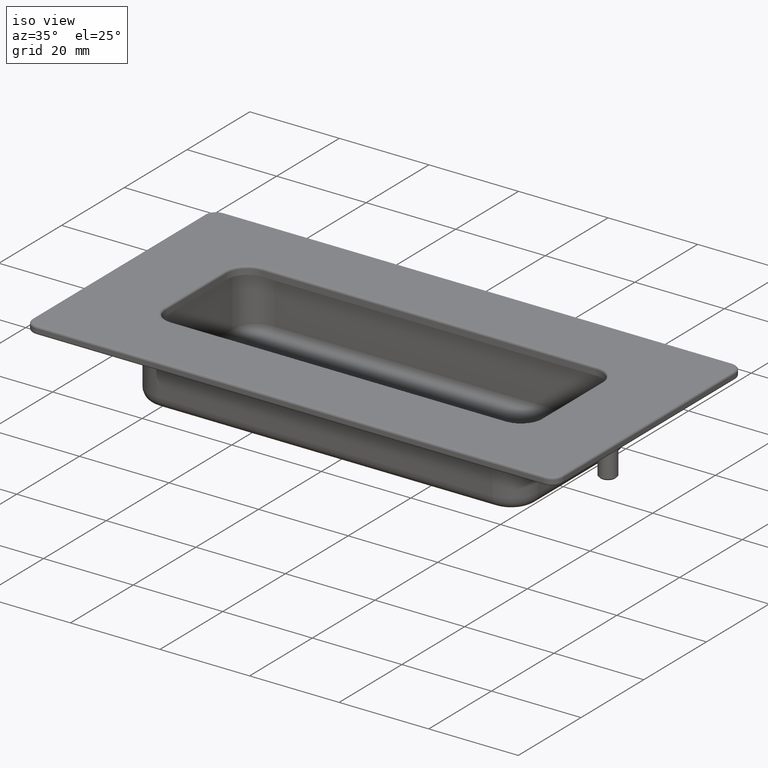
[diagram: clean part render]
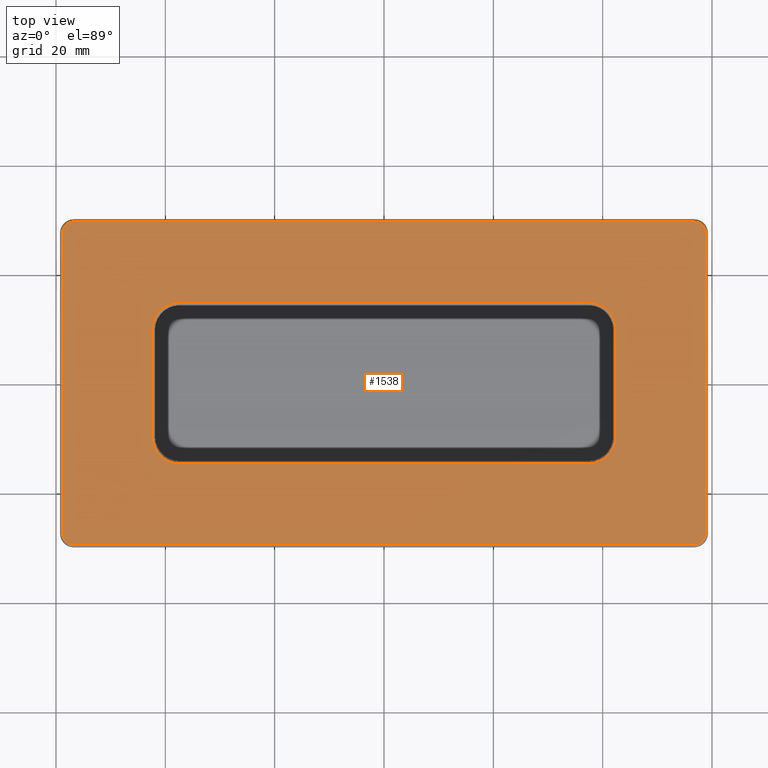
[diagram: tour spotlight — one face highlighted and labeled with its STEP entity id]
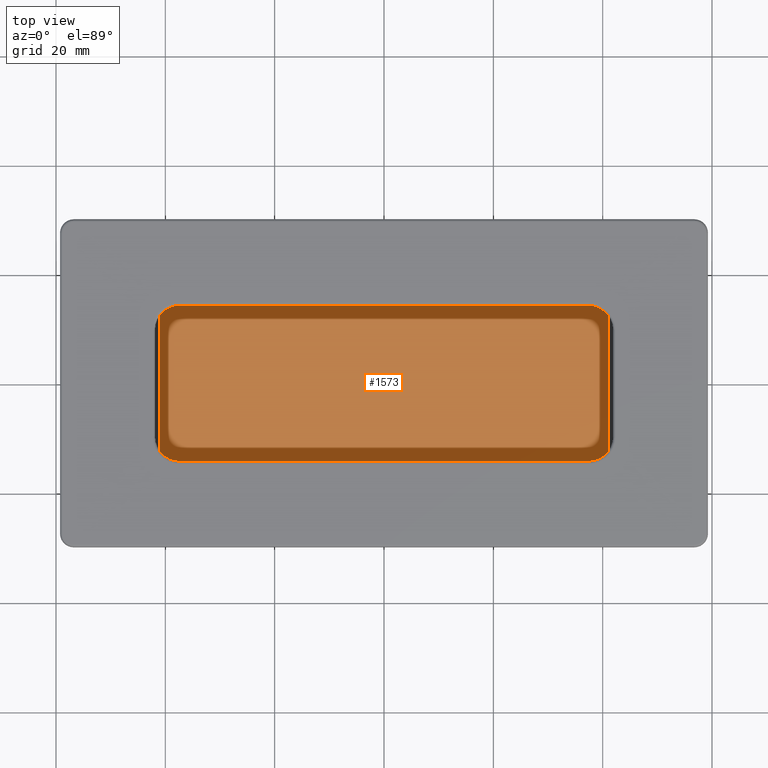
[diagram: tour spotlight — one face highlighted and labeled with its STEP entity id]
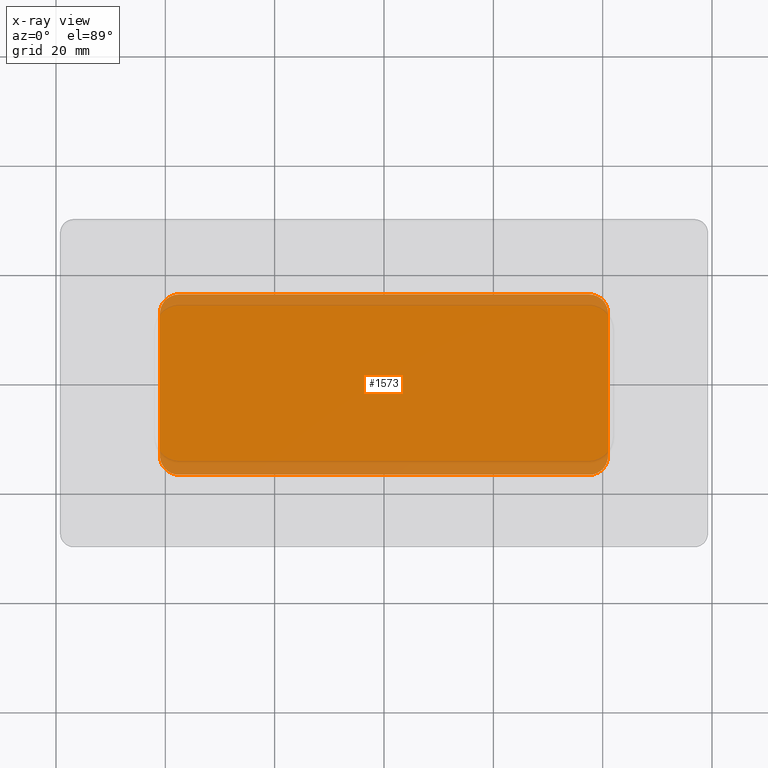
[diagram: x-ray of the same camera — body ghosted, this tour face saturated]
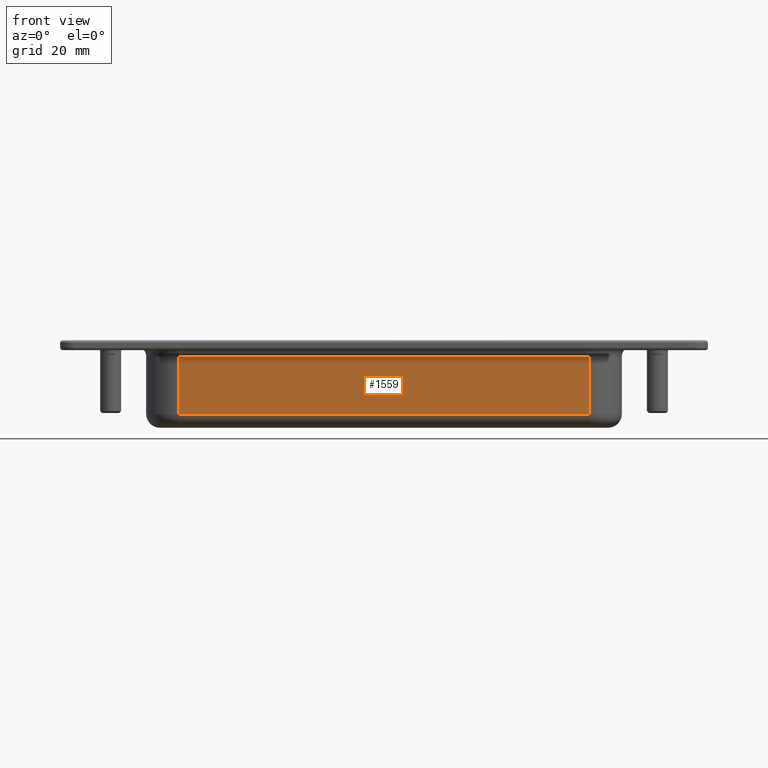
[diagram: tour spotlight — one face highlighted and labeled with its STEP entity id]
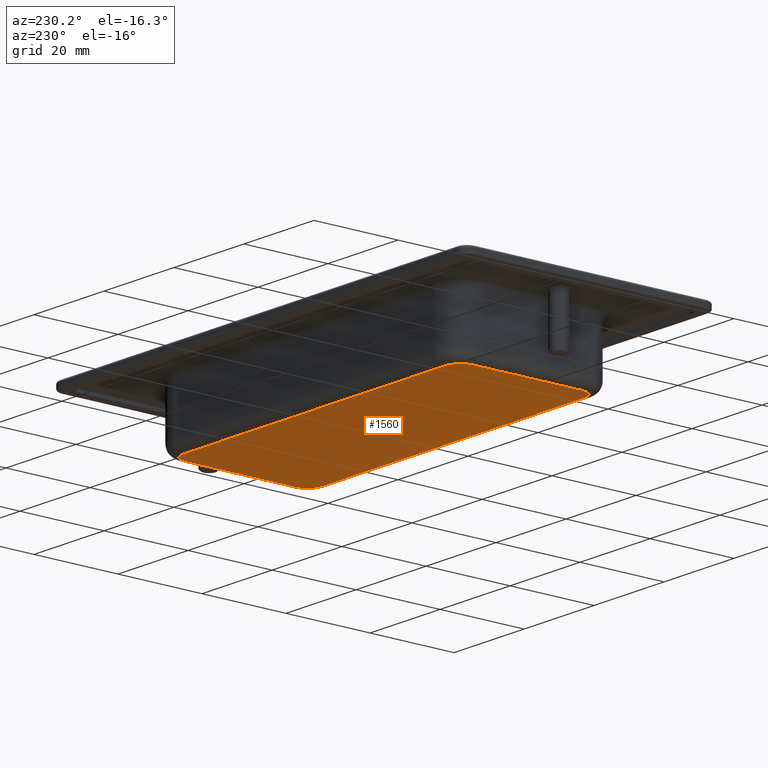
[diagram: tour spotlight — one face highlighted and labeled with its STEP entity id]
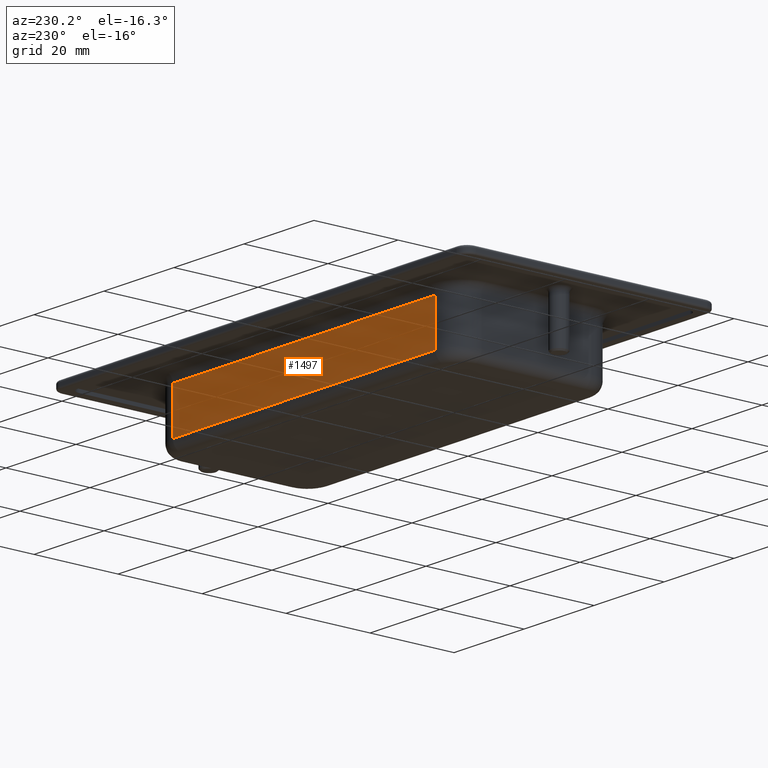
[diagram: tour spotlight — one face highlighted and labeled with its STEP entity id]
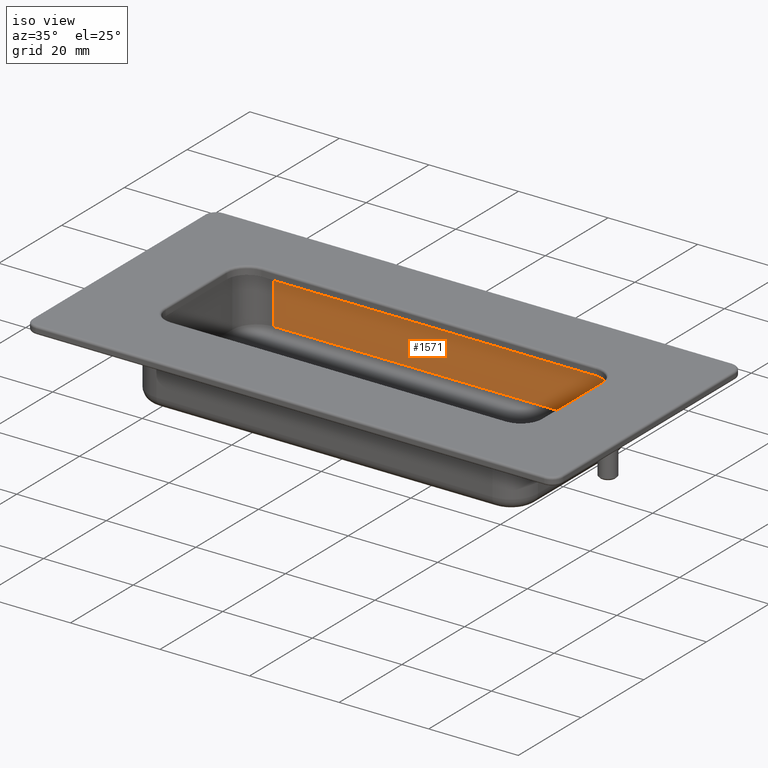
[diagram: tour spotlight — one face highlighted and labeled with its STEP entity id]
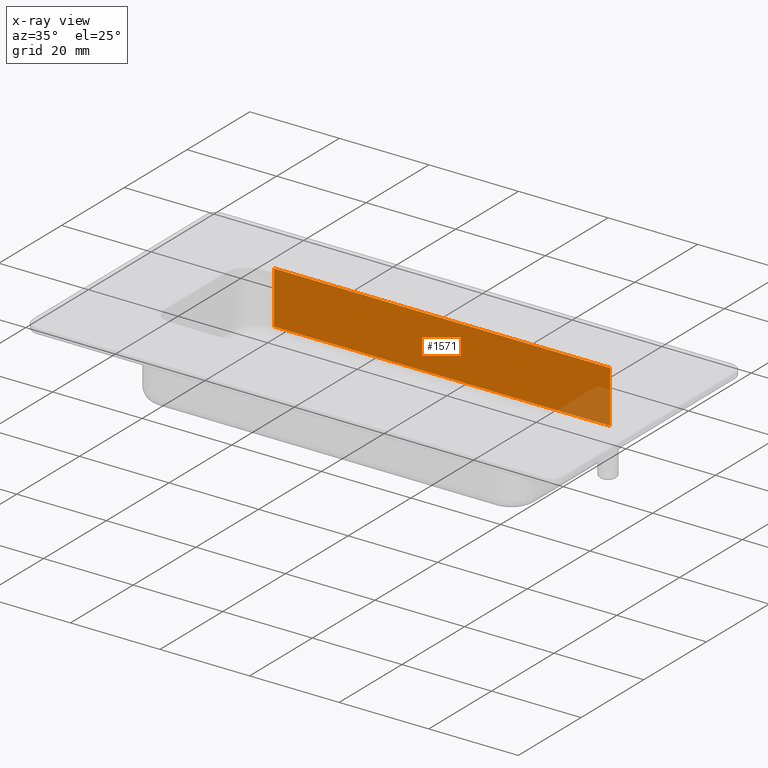
[diagram: x-ray of the same camera — body ghosted, this tour face saturated]
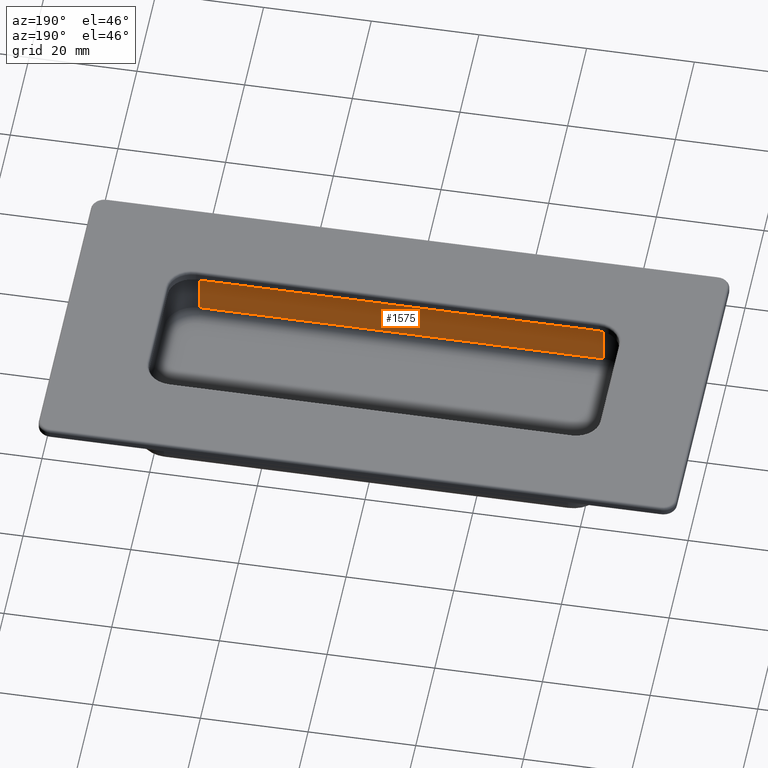
[diagram: tour spotlight — one face highlighted and labeled with its STEP entity id]
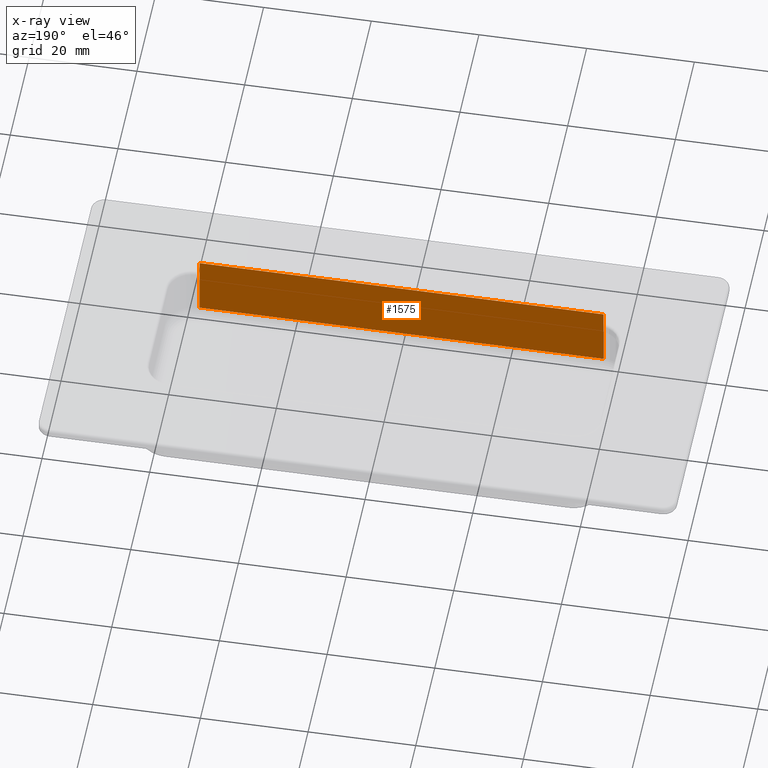
[diagram: x-ray of the same camera — body ghosted, this tour face saturated]
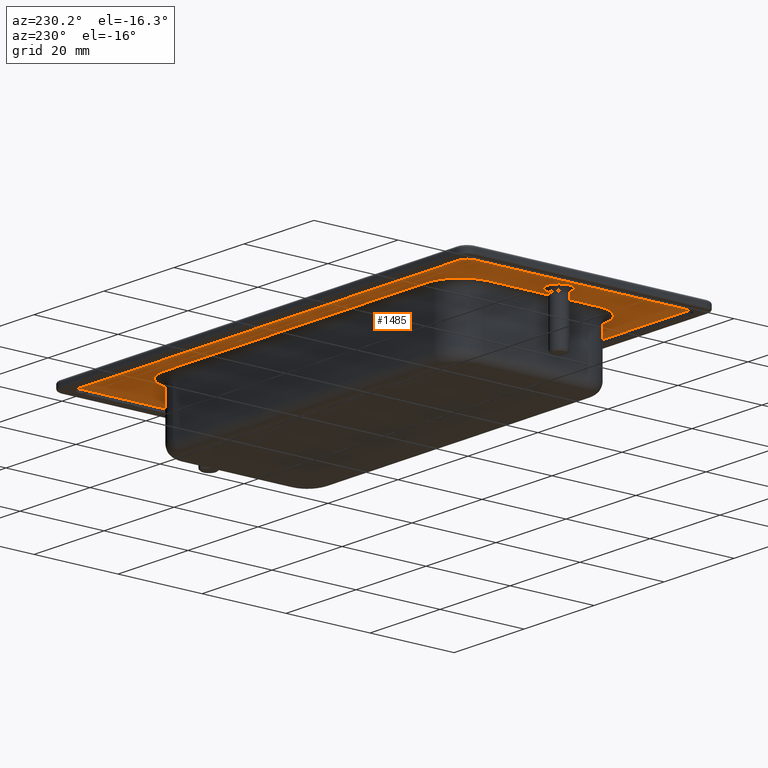
[diagram: tour spotlight — one face highlighted and labeled with its STEP entity id]
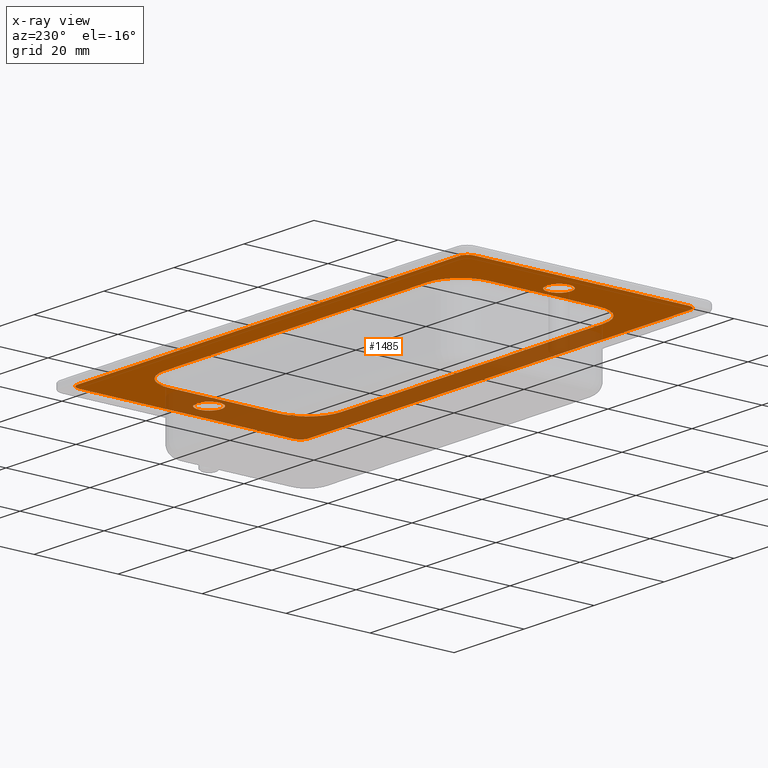
[diagram: x-ray of the same camera — body ghosted, this tour face saturated]
A machine part: a face-by-face anatomy tour. The part has 102 B-rep faces; the first image is the clean iso view, then the 8 largest visible faces are spotlighted one at a time (largest first), each with its STEP entity span.

Face 1 — top view, entity #1538. In plain terms, the highlighted planar face has unit normal (0, 0, 1).
Definition (entity closure, byte-faithful):
#112=LINE('',#2580,#216);
#114=LINE('',#2592,#218);
#116=LINE('',#2604,#220);
#118=LINE('',#2613,#222);
#127=LINE('',#2636,#231);
#128=LINE('',#2640,#232);
#129=LINE('',#2644,#233);
#130=LINE('',#2648,#234);
#216=VECTOR('',#2060,19.5);
#218=VECTOR('',#2074,74.8);
#220=VECTOR('',#2088,19.5);
#222=VECTOR('',#2100,74.8);
#231=VECTOR('',#2123,113.5);
#232=VECTOR('',#2126,55.);
#233=VECTOR('',#2129,113.5);
#234=VECTOR('',#2132,55.);
#288=PLANE('',#1712);
#312=FACE_BOUND('',#481,.T.);
#368=FACE_OUTER_BOUND('',#480,.T.);
#480=EDGE_LOOP('',(#1234,#1235,#1236,#1237,#1238,#1239,#1240,#1241));
#481=EDGE_LOOP('',(#1242,#1243,#1244,#1245,#1246,#1247,#1248,#1249));
#585=CIRCLE('',#1686,5.00000000000002);
#588=CIRCLE('',#1691,5.);
#592=CIRCLE('',#1697,4.99999999999999);
#596=CIRCLE('',#1703,5.);
#600=CIRCLE('',#1713,2.);
#601=CIRCLE('',#1714,2.);
#602=CIRCLE('',#1715,2.);
#603=CIRCLE('',#1716,2.);
#716=VERTEX_POINT('',#2568);
#719=VERTEX_POINT('',#2573);
#721=VERTEX_POINT('',#2578);
#723=VERTEX_POINT('',#2584);
#725=VERTEX_POINT('',#2590);
#727=VERTEX_POINT('',#2596);
#729=VERTEX_POINT('',#2602);
#731=VERTEX_POINT('',#2608);
#737=VERTEX_POINT('',#2634);
#738=VERTEX_POINT('',#2635);
#739=VERTEX_POINT('',#2637);
#740=VERTEX_POINT('',#2639);
#741=VERTEX_POINT('',#2641);
#742=VERTEX_POINT('',#2643);
#743=VERTEX_POINT('',#2645);
#744=VERTEX_POINT('',#2647);
#887=EDGE_CURVE('',#719,#716,#585,.T.);
#889=EDGE_CURVE('',#721,#719,#112,.T.);
#892=EDGE_CURVE('',#723,#721,#588,.T.);
#895=EDGE_CURVE('',#725,#723,#114,.T.);
#898=EDGE_CURVE('',#727,#725,#592,.T.);
#901=EDGE_CURVE('',#729,#727,#116,.T.);
#904=EDGE_CURVE('',#731,#729,#596,.T.);
#906=EDGE_CURVE('',#716,#731,#118,.T.);
#917=EDGE_CURVE('',#737,#738,#127,.T.);
#918=EDGE_CURVE('',#739,#737,#600,.T.);
#919=EDGE_CURVE('',#740,#739,#128,.T.);
#920=EDGE_CURVE('',#741,#740,#601,.T.);
#921=EDGE_CURVE('',#742,#741,#129,.T.);
#922=EDGE_CURVE('',#743,#742,#602,.T.);
#923=EDGE_CURVE('',#744,#743,#130,.T.);
#924=EDGE_CURVE('',#738,#744,#603,.T.);
#1234=ORIENTED_EDGE('',*,*,#917,.F.);
#1235=ORIENTED_EDGE('',*,*,#918,.F.);
#1236=ORIENTED_EDGE('',*,*,#919,.F.);
#1237=ORIENTED_EDGE('',*,*,#920,.F.);
#1238=ORIENTED_EDGE('',*,*,#921,.F.);
#1239=ORIENTED_EDGE('',*,*,#922,.F.);
#1240=ORIENTED_EDGE('',*,*,#923,.F.);
#1241=ORIENTED_EDGE('',*,*,#924,.F.);
#1242=ORIENTED_EDGE('',*,*,#887,.F.);
#1243=ORIENTED_EDGE('',*,*,#889,.F.);
#1244=ORIENTED_EDGE('',*,*,#892,.F.);
#1245=ORIENTED_EDGE('',*,*,#895,.F.);
#1246=ORIENTED_EDGE('',*,*,#898,.F.);
#1247=ORIENTED_EDGE('',*,*,#901,.F.);
#1248=ORIENTED_EDGE('',*,*,#904,.F.);
#1249=ORIENTED_EDGE('',*,*,#906,.F.);
#1538=ADVANCED_FACE('',(#368,#312),#288,.T.);
#1686=AXIS2_PLACEMENT_3D('',#2575,#2054,#2055);
#1691=AXIS2_PLACEMENT_3D('',#2586,#2066,#2067);
#1697=AXIS2_PLACEMENT_3D('',#2598,#2080,#2081);
#1703=AXIS2_PLACEMENT_3D('',#2610,#2094,#2095);
#1712=AXIS2_PLACEMENT_3D('',#2633,#2121,#2122);
#1713=AXIS2_PLACEMENT_3D('',#2638,#2124,#2125);
#1714=AXIS2_PLACEMENT_3D('',#2642,#2127,#2128);
#1715=AXIS2_PLACEMENT_3D('',#2646,#2130,#2131);
#1716=AXIS2_PLACEMENT_3D('',#2649,#2133,#2134);
#2054=DIRECTION('center_axis',(0.,0.,1.));
#2055=DIRECTION('ref_axis',(0.707106781186547,0.707106781186548,0.));
#2060=DIRECTION('',(0.,1.,0.));
#2066=DIRECTION('center_axis',(0.,0.,1.));
#2067=DIRECTION('ref_axis',(0.707106781186547,-0.707106781186548,0.));
#2074=DIRECTION('',(1.,0.,0.));
#2080=DIRECTION('center_axis',(0.,0.,1.));
#2081=DIRECTION('ref_axis',(-0.707106781186547,-0.707106781186548,0.));
#2088=DIRECTION('',(0.,-1.,0.));
#2094=DIRECTION('center_axis',(0.,0.,1.));
#2095=DIRECTION('ref_axis',(-0.707106781186548,0.707106781186547,0.));
#2100=DIRECTION('',(-1.,0.,0.));
#2121=DIRECTION('center_axis',(0.,0.,1.));
#2122=DIRECTION('ref_axis',(1.,0.,0.));
#2123=DIRECTION('',(1.,0.,0.));
#2124=DIRECTION('center_axis',(0.,0.,-1.));
#2125=DIRECTION('ref_axis',(-0.707106781186548,0.707106781186548,0.));
#2126=DIRECTION('',(0.,1.,0.));
#2127=DIRECTION('center_axis',(0.,0.,-1.));
#2128=DIRECTION('ref_axis',(-0.707106781186547,-0.707106781186548,0.));
#2129=DIRECTION('',(-1.,0.,0.));
#2130=DIRECTION('center_axis',(0.,0.,-1.));
#2131=DIRECTION('ref_axis',(0.707106781186548,-0.707106781186548,0.));
#2132=DIRECTION('',(0.,-1.,0.));
#2133=DIRECTION('center_axis',(0.,0.,-1.));
#2134=DIRECTION('ref_axis',(0.707106781186547,0.707106781186548,0.));
#2568=CARTESIAN_POINT('',(37.4,14.75,0.));
#2573=CARTESIAN_POINT('',(42.4,9.75,0.));
#2575=CARTESIAN_POINT('Origin',(37.4,9.75,0.));
#2578=CARTESIAN_POINT('',(42.4,-9.75,0.));
#2580=CARTESIAN_POINT('',(42.4,-4.875,0.));
#2584=CARTESIAN_POINT('',(37.4,-14.75,0.));
#2586=CARTESIAN_POINT('Origin',(37.4,-9.75,0.));
#2590=CARTESIAN_POINT('',(-37.4,-14.75,0.));
#2592=CARTESIAN_POINT('',(-18.7,-14.75,0.));
#2596=CARTESIAN_POINT('',(-42.4,-9.75,0.));
#2598=CARTESIAN_POINT('Origin',(-37.4,-9.75,0.));
#2602=CARTESIAN_POINT('',(-42.4,9.75,0.));
#2604=CARTESIAN_POINT('',(-42.4,4.875,0.));
#2608=CARTESIAN_POINT('',(-37.4,14.75,0.));
#2610=CARTESIAN_POINT('Origin',(-37.4,9.75,0.));
#2613=CARTESIAN_POINT('',(18.7,14.75,0.));
#2633=CARTESIAN_POINT('Origin',(0.,0.,0.));
#2634=CARTESIAN_POINT('',(-56.75,29.5,0.));
#2635=CARTESIAN_POINT('',(56.75,29.5,0.));
#2636=CARTESIAN_POINT('',(-28.375,29.5,0.));
#2637=CARTESIAN_POINT('',(-58.75,27.5,0.));
#2638=CARTESIAN_POINT('Origin',(-56.75,27.5,0.));
#2639=CARTESIAN_POINT('',(-58.75,-27.5,0.));
#2640=CARTESIAN_POINT('',(-58.75,-13.75,0.));
#2641=CARTESIAN_POINT('',(-56.75,-29.5,0.));
#2642=CARTESIAN_POINT('Origin',(-56.75,-27.5,0.));
#2643=CARTESIAN_POINT('',(56.75,-29.5,0.));
#2644=CARTESIAN_POINT('',(28.375,-29.5,0.));
#2645=CARTESIAN_POINT('',(58.75,-27.5,0.));
#2646=CARTESIAN_POINT('Origin',(56.75,-27.5,0.));
#2647=CARTESIAN_POINT('',(58.75,27.5,0.));
#2648=CARTESIAN_POINT('',(58.75,13.75,0.));
#2649=CARTESIAN_POINT('Origin',(56.75,27.5,0.));

Face 2 — top view, entity #1573. An x-ray twin of the same camera follows (body ghosted, this face saturated) — the face is partly hidden behind the body. In plain terms, the highlighted planar face has unit normal (0, 0, -1).
Definition (entity closure, byte-faithful):
#144=LINE('',#2736,#248);
#146=LINE('',#2748,#250);
#148=LINE('',#2760,#252);
#150=LINE('',#2769,#254);
#248=VECTOR('',#2254,26.);
#250=VECTOR('',#2268,75.);
#252=VECTOR('',#2282,26.);
#254=VECTOR('',#2294,75.);
#295=PLANE('',#1793);
#403=FACE_OUTER_BOUND('',#516,.T.);
#516=EDGE_LOOP('',(#1390,#1391,#1392,#1393,#1394,#1395,#1396,#1397));
#629=CIRCLE('',#1765,3.5);
#635=CIRCLE('',#1773,3.5);
#639=CIRCLE('',#1779,3.5);
#643=CIRCLE('',#1785,3.5);
#760=VERTEX_POINT('',#2724);
#761=VERTEX_POINT('',#2726);
#763=VERTEX_POINT('',#2732);
#765=VERTEX_POINT('',#2738);
#767=VERTEX_POINT('',#2744);
#769=VERTEX_POINT('',#2750);
#771=VERTEX_POINT('',#2756);
#773=VERTEX_POINT('',#2762);
#962=EDGE_CURVE('',#760,#761,#629,.T.);
#967=EDGE_CURVE('',#761,#763,#144,.T.);
#970=EDGE_CURVE('',#763,#765,#635,.T.);
#973=EDGE_CURVE('',#765,#767,#146,.T.);
#976=EDGE_CURVE('',#767,#769,#639,.T.);
#979=EDGE_CURVE('',#769,#771,#148,.T.);
#982=EDGE_CURVE('',#771,#773,#643,.T.);
#984=EDGE_CURVE('',#773,#760,#150,.T.);
#1390=ORIENTED_EDGE('',*,*,#962,.F.);
#1391=ORIENTED_EDGE('',*,*,#984,.F.);
#1392=ORIENTED_EDGE('',*,*,#982,.F.);
#1393=ORIENTED_EDGE('',*,*,#979,.F.);
#1394=ORIENTED_EDGE('',*,*,#976,.F.);
#1395=ORIENTED_EDGE('',*,*,#973,.F.);
#1396=ORIENTED_EDGE('',*,*,#970,.F.);
#1397=ORIENTED_EDGE('',*,*,#967,.F.);
#1573=ADVANCED_FACE('',(#403),#295,.F.);
#1765=AXIS2_PLACEMENT_3D('',#2727,#2243,#2244);
#1773=AXIS2_PLACEMENT_3D('',#2742,#2261,#2262);
#1779=AXIS2_PLACEMENT_3D('',#2754,#2275,#2276);
#1785=AXIS2_PLACEMENT_3D('',#2766,#2289,#2290);
#1793=AXIS2_PLACEMENT_3D('',#2788,#2314,#2315);
#2243=DIRECTION('center_axis',(0.,0.,-1.));
#2244=DIRECTION('ref_axis',(0.707106781186547,0.707106781186548,0.));
#2254=DIRECTION('',(0.,-1.,0.));
#2261=DIRECTION('center_axis',(0.,0.,-1.));
#2262=DIRECTION('ref_axis',(0.707106781186547,-0.707106781186548,0.));
#2268=DIRECTION('',(-1.,0.,0.));
#2275=DIRECTION('center_axis',(0.,0.,-1.));
#2276=DIRECTION('ref_axis',(-0.707106781186547,-0.707106781186548,0.));
#2282=DIRECTION('',(0.,1.,0.));
#2289=DIRECTION('center_axis',(0.,0.,-1.));
#2290=DIRECTION('ref_axis',(-0.707106781186547,0.707106781186548,0.));
#2294=DIRECTION('',(1.,0.,0.));
#2314=DIRECTION('center_axis',(0.,0.,-1.));
#2315=DIRECTION('ref_axis',(-1.,0.,0.));
#2724=CARTESIAN_POINT('',(37.5,16.5,-15.5));
#2726=CARTESIAN_POINT('',(41.,13.,-15.5));
#2727=CARTESIAN_POINT('Origin',(37.5,13.,-15.5));
#2732=CARTESIAN_POINT('',(41.,-13.,-15.5));
#2736=CARTESIAN_POINT('',(41.,-6.50000000000001,-15.5));
#2738=CARTESIAN_POINT('',(37.5,-16.5,-15.5));
#2742=CARTESIAN_POINT('Origin',(37.5,-13.,-15.5));
#2744=CARTESIAN_POINT('',(-37.5,-16.5,-15.5));
#2748=CARTESIAN_POINT('',(-18.75,-16.5,-15.5));
#2750=CARTESIAN_POINT('',(-41.,-13.,-15.5));
#2754=CARTESIAN_POINT('Origin',(-37.5,-13.,-15.5));
#2756=CARTESIAN_POINT('',(-41.,13.,-15.5));
#2760=CARTESIAN_POINT('',(-41.,6.50000000000001,-15.5));
#2762=CARTESIAN_POINT('',(-37.5,16.5,-15.5));
#2766=CARTESIAN_POINT('Origin',(-37.5,13.,-15.5));
#2769=CARTESIAN_POINT('',(18.75,16.5,-15.5));
#2788=CARTESIAN_POINT('Origin',(8.88178419700125E-15,-5.55111512312578E-15,
-15.5));

Face 3 — front view, entity #1559. In plain terms, the highlighted planar face has unit normal (0, -1, 0).
Definition (entity closure, byte-faithful):
#74=LINE('',#2419,#178);
#84=LINE('',#2458,#188);
#138=LINE('',#2699,#242);
#142=LINE('',#2720,#246);
#178=VECTOR('',#1870,75.);
#188=VECTOR('',#1918,10.5);
#242=VECTOR('',#2208,75.);
#246=VECTOR('',#2236,10.5);
#291=PLANE('',#1761);
#389=FACE_OUTER_BOUND('',#502,.T.);
#502=EDGE_LOOP('',(#1330,#1331,#1332,#1333));
#673=VERTEX_POINT('',#2413);
#674=VERTEX_POINT('',#2417);
#684=VERTEX_POINT('',#2457);
#752=VERTEX_POINT('',#2695);
#812=EDGE_CURVE('',#674,#673,#74,.T.);
#831=EDGE_CURVE('',#673,#684,#84,.T.);
#949=EDGE_CURVE('',#684,#752,#138,.T.);
#960=EDGE_CURVE('',#752,#674,#142,.T.);
#1330=ORIENTED_EDGE('',*,*,#812,.F.);
#1331=ORIENTED_EDGE('',*,*,#960,.F.);
#1332=ORIENTED_EDGE('',*,*,#949,.F.);
#1333=ORIENTED_EDGE('',*,*,#831,.F.);
#1559=ADVANCED_FACE('',(#389),#291,.T.);
#1761=AXIS2_PLACEMENT_3D('',#2719,#2234,#2235);
#1870=DIRECTION('',(1.,0.,0.));
#1918=DIRECTION('',(0.,0.,-1.));
#2208=DIRECTION('',(-1.,0.,0.));
#2234=DIRECTION('center_axis',(0.,-1.,0.));
#2235=DIRECTION('ref_axis',(-1.,0.,0.));
#2236=DIRECTION('',(0.,0.,1.));
#2413=CARTESIAN_POINT('',(37.5,-19.,-3.));
#2417=CARTESIAN_POINT('',(-37.5,-19.,-3.));
#2419=CARTESIAN_POINT('',(18.75,-19.,-3.));
#2457=CARTESIAN_POINT('',(37.5,-19.,-13.5));
#2458=CARTESIAN_POINT('',(37.5,-19.,-1.8));
#2695=CARTESIAN_POINT('',(-37.5,-19.,-13.5));
#2699=CARTESIAN_POINT('',(18.75,-19.,-13.5));
#2719=CARTESIAN_POINT('Origin',(37.5,-19.,-1.8));
#2720=CARTESIAN_POINT('',(-37.5,-19.,-1.8));

Face 4 — auxiliary view, entity #1560. In plain terms, the highlighted planar face has unit normal (0, 0, -1).
Definition (entity closure, byte-faithful):
#136=LINE('',#2689,#240);
#137=LINE('',#2698,#241);
#139=LINE('',#2710,#243);
#141=LINE('',#2718,#245);
#240=VECTOR('',#2196,26.);
#241=VECTOR('',#2207,75.);
#243=VECTOR('',#2221,26.);
#245=VECTOR('',#2233,75.);
#292=PLANE('',#1762);
#390=FACE_OUTER_BOUND('',#503,.T.);
#503=EDGE_LOOP('',(#1334,#1335,#1336,#1337,#1338,#1339,#1340,#1341));
#616=CIRCLE('',#1742,3.5);
#619=CIRCLE('',#1747,3.50000000000001);
#622=CIRCLE('',#1752,3.5);
#626=CIRCLE('',#1758,3.49999999999999);
#748=VERTEX_POINT('',#2681);
#749=VERTEX_POINT('',#2683);
#750=VERTEX_POINT('',#2687);
#751=VERTEX_POINT('',#2691);
#753=VERTEX_POINT('',#2696);
#755=VERTEX_POINT('',#2702);
#757=VERTEX_POINT('',#2708);
#758=VERTEX_POINT('',#2713);
#942=EDGE_CURVE('',#749,#748,#616,.T.);
#944=EDGE_CURVE('',#750,#749,#136,.T.);
#946=EDGE_CURVE('',#751,#750,#619,.T.);
#948=EDGE_CURVE('',#753,#751,#137,.T.);
#951=EDGE_CURVE('',#755,#753,#622,.T.);
#954=EDGE_CURVE('',#757,#755,#139,.T.);
#957=EDGE_CURVE('',#758,#757,#626,.T.);
#959=EDGE_CURVE('',#748,#758,#141,.T.);
#1334=ORIENTED_EDGE('',*,*,#942,.F.);
#1335=ORIENTED_EDGE('',*,*,#944,.F.);
#1336=ORIENTED_EDGE('',*,*,#946,.F.);
#1337=ORIENTED_EDGE('',*,*,#948,.F.);
#1338=ORIENTED_EDGE('',*,*,#951,.F.);
#1339=ORIENTED_EDGE('',*,*,#954,.F.);
#1340=ORIENTED_EDGE('',*,*,#957,.F.);
#1341=ORIENTED_EDGE('',*,*,#959,.F.);
#1560=ADVANCED_FACE('',(#390),#292,.T.);
#1742=AXIS2_PLACEMENT_3D('',#2685,#2190,#2191);
#1747=AXIS2_PLACEMENT_3D('',#2693,#2201,#2202);
#1752=AXIS2_PLACEMENT_3D('',#2704,#2213,#2214);
#1758=AXIS2_PLACEMENT_3D('',#2715,#2227,#2228);
#1762=AXIS2_PLACEMENT_3D('',#2721,#2237,#2238);
#2190=DIRECTION('center_axis',(0.,0.,1.));
#2191=DIRECTION('ref_axis',(0.707106781186548,0.707106781186548,0.));
#2196=DIRECTION('',(0.,1.,0.));
#2201=DIRECTION('center_axis',(0.,0.,1.));
#2202=DIRECTION('ref_axis',(0.707106781186547,-0.707106781186548,0.));
#2207=DIRECTION('',(1.,0.,0.));
#2213=DIRECTION('center_axis',(0.,0.,1.));
#2214=DIRECTION('ref_axis',(-0.707106781186548,-0.707106781186548,0.));
#2221=DIRECTION('',(0.,-1.,0.));
#2227=DIRECTION('center_axis',(0.,0.,1.));
#2228=DIRECTION('ref_axis',(-0.707106781186548,0.707106781186547,0.));
#2233=DIRECTION('',(-1.,0.,0.));
#2237=DIRECTION('center_axis',(0.,0.,-1.));
#2238=DIRECTION('ref_axis',(-1.,0.,0.));
#2681=CARTESIAN_POINT('',(37.5,16.5,-16.));
#2683=CARTESIAN_POINT('',(41.,13.,-16.));
#2685=CARTESIAN_POINT('Origin',(37.5,13.,-16.));
#2687=CARTESIAN_POINT('',(41.,-13.,-16.));
#2689=CARTESIAN_POINT('',(41.,6.5,-16.));
#2691=CARTESIAN_POINT('',(37.5,-16.5,-16.));
#2693=CARTESIAN_POINT('Origin',(37.5,-13.,-16.));
#2696=CARTESIAN_POINT('',(-37.5,-16.5,-16.));
#2698=CARTESIAN_POINT('',(18.75,-16.5,-16.));
#2702=CARTESIAN_POINT('',(-41.,-13.,-16.));
#2704=CARTESIAN_POINT('Origin',(-37.5,-13.,-16.));
#2708=CARTESIAN_POINT('',(-41.,13.,-16.));
#2710=CARTESIAN_POINT('',(-41.,-6.5,-16.));
#2713=CARTESIAN_POINT('',(-37.5,16.5,-16.));
#2715=CARTESIAN_POINT('Origin',(-37.5,13.,-16.));
#2718=CARTESIAN_POINT('',(-18.75,16.5,-16.));
#2721=CARTESIAN_POINT('Origin',(8.88178419700125E-15,-5.55111512312578E-15,
-16.));

Face 5 — auxiliary view, entity #1497. In plain terms, the highlighted planar face has unit normal (0, 1, 0).
Definition (entity closure, byte-faithful):
#76=LINE('',#2435,#180);
#78=LINE('',#2444,#182);
#79=LINE('',#2446,#183);
#80=LINE('',#2447,#184);
#180=VECTOR('',#1892,75.);
#182=VECTOR('',#1904,10.5);
#183=VECTOR('',#1905,75.);
#184=VECTOR('',#1906,10.5);
#275=PLANE('',#1627);
#327=FACE_OUTER_BOUND('',#436,.T.);
#436=EDGE_LOOP('',(#1068,#1069,#1070,#1071));
#677=VERTEX_POINT('',#2429);
#678=VERTEX_POINT('',#2433);
#680=VERTEX_POINT('',#2443);
#681=VERTEX_POINT('',#2445);
#820=EDGE_CURVE('',#678,#677,#76,.T.);
#824=EDGE_CURVE('',#680,#678,#78,.T.);
#825=EDGE_CURVE('',#681,#680,#79,.T.);
#826=EDGE_CURVE('',#681,#677,#80,.T.);
#1068=ORIENTED_EDGE('',*,*,#820,.F.);
#1069=ORIENTED_EDGE('',*,*,#824,.F.);
#1070=ORIENTED_EDGE('',*,*,#825,.F.);
#1071=ORIENTED_EDGE('',*,*,#826,.T.);
#1497=ADVANCED_FACE('',(#327),#275,.T.);
#1627=AXIS2_PLACEMENT_3D('',#2442,#1902,#1903);
#1892=DIRECTION('',(-1.,0.,0.));
#1902=DIRECTION('center_axis',(0.,1.,0.));
#1903=DIRECTION('ref_axis',(1.,0.,0.));
#1904=DIRECTION('',(0.,0.,1.));
#1905=DIRECTION('',(1.,0.,0.));
#1906=DIRECTION('',(0.,0.,1.));
#2429=CARTESIAN_POINT('',(-37.5,19.,-3.));
#2433=CARTESIAN_POINT('',(37.5,19.,-3.));
#2435=CARTESIAN_POINT('',(-18.75,19.,-3.));
#2442=CARTESIAN_POINT('Origin',(-37.5,19.,-1.8));
#2443=CARTESIAN_POINT('',(37.5,19.,-13.5));
#2444=CARTESIAN_POINT('',(37.5,19.,-1.8));
#2445=CARTESIAN_POINT('',(-37.5,19.,-13.5));
#2446=CARTESIAN_POINT('',(-18.75,19.,-13.5));
#2447=CARTESIAN_POINT('',(-37.5,19.,-1.8));

Face 6 — iso view, entity #1571. An x-ray twin of the same camera follows (body ghosted, this face saturated) — the face is partly hidden behind the body. In plain terms, the highlighted planar face has unit normal (0, -1, 0).
Definition (entity closure, byte-faithful):
#149=LINE('',#2768,#253);
#154=LINE('',#2778,#258);
#155=LINE('',#2782,#259);
#156=LINE('',#2783,#260);
#253=VECTOR('',#2293,75.);
#258=VECTOR('',#2302,11.7);
#259=VECTOR('',#2307,11.7);
#260=VECTOR('',#2308,75.);
#294=PLANE('',#1790);
#401=FACE_OUTER_BOUND('',#514,.T.);
#514=EDGE_LOOP('',(#1382,#1383,#1384,#1385));
#759=VERTEX_POINT('',#2723);
#774=VERTEX_POINT('',#2763);
#777=VERTEX_POINT('',#2777);
#778=VERTEX_POINT('',#2781);
#983=EDGE_CURVE('',#759,#774,#149,.T.);
#988=EDGE_CURVE('',#777,#774,#154,.T.);
#990=EDGE_CURVE('',#778,#759,#155,.T.);
#991=EDGE_CURVE('',#777,#778,#156,.T.);
#1382=ORIENTED_EDGE('',*,*,#983,.F.);
#1383=ORIENTED_EDGE('',*,*,#990,.F.);
#1384=ORIENTED_EDGE('',*,*,#991,.F.);
#1385=ORIENTED_EDGE('',*,*,#988,.T.);
#1571=ADVANCED_FACE('',(#401),#294,.T.);
#1790=AXIS2_PLACEMENT_3D('',#2780,#2305,#2306);
#2293=DIRECTION('',(-1.,0.,0.));
#2302=DIRECTION('',(0.,0.,-1.));
#2305=DIRECTION('center_axis',(0.,-1.,0.));
#2306=DIRECTION('ref_axis',(-1.,0.,0.));
#2307=DIRECTION('',(0.,0.,-1.));
#2308=DIRECTION('',(1.,0.,0.));
#2723=CARTESIAN_POINT('',(37.5,18.5,-13.5));
#2763=CARTESIAN_POINT('',(-37.5,18.5,-13.5));
#2768=CARTESIAN_POINT('',(18.75,18.5,-13.5));
#2777=CARTESIAN_POINT('',(-37.5,18.5,-1.8));
#2778=CARTESIAN_POINT('',(-37.5,18.5,-1.8));
#2780=CARTESIAN_POINT('Origin',(37.5,18.5,-1.8));
#2781=CARTESIAN_POINT('',(37.5,18.5,-1.8));
#2782=CARTESIAN_POINT('',(37.5,18.5,-1.8));
#2783=CARTESIAN_POINT('',(18.75,18.5,-1.8));

Face 7 — auxiliary view, entity #1575. An x-ray twin of the same camera follows (body ghosted, this face saturated) — the face is partly hidden behind the body. In plain terms, the highlighted planar face has unit normal (0, 1, 0).
Definition (entity closure, byte-faithful):
#145=LINE('',#2747,#249);
#159=LINE('',#2793,#263);
#160=LINE('',#2795,#264);
#161=LINE('',#2796,#265);
#249=VECTOR('',#2267,75.);
#263=VECTOR('',#2321,11.7);
#264=VECTOR('',#2322,75.);
#265=VECTOR('',#2323,11.7);
#296=PLANE('',#1795);
#405=FACE_OUTER_BOUND('',#518,.T.);
#518=EDGE_LOOP('',(#1402,#1403,#1404,#1405));
#766=VERTEX_POINT('',#2739);
#768=VERTEX_POINT('',#2745);
#780=VERTEX_POINT('',#2792);
#781=VERTEX_POINT('',#2794);
#972=EDGE_CURVE('',#768,#766,#145,.T.);
#995=EDGE_CURVE('',#780,#768,#159,.T.);
#996=EDGE_CURVE('',#781,#780,#160,.T.);
#997=EDGE_CURVE('',#781,#766,#161,.T.);
#1402=ORIENTED_EDGE('',*,*,#972,.F.);
#1403=ORIENTED_EDGE('',*,*,#995,.F.);
#1404=ORIENTED_EDGE('',*,*,#996,.F.);
#1405=ORIENTED_EDGE('',*,*,#997,.T.);
#1575=ADVANCED_FACE('',(#405),#296,.T.);
#1795=AXIS2_PLACEMENT_3D('',#2791,#2319,#2320);
#2267=DIRECTION('',(1.,0.,0.));
#2319=DIRECTION('center_axis',(0.,1.,0.));
#2320=DIRECTION('ref_axis',(1.,0.,0.));
#2321=DIRECTION('',(0.,0.,-1.));
#2322=DIRECTION('',(-1.,0.,0.));
#2323=DIRECTION('',(0.,0.,-1.));
#2739=CARTESIAN_POINT('',(37.5,-18.5,-13.5));
#2745=CARTESIAN_POINT('',(-37.5,-18.5,-13.5));
#2747=CARTESIAN_POINT('',(-18.75,-18.5,-13.5));
#2791=CARTESIAN_POINT('Origin',(-37.5,-18.5,-1.8));
#2792=CARTESIAN_POINT('',(-37.5,-18.5,-1.8));
#2793=CARTESIAN_POINT('',(-37.5,-18.5,-1.8));
#2794=CARTESIAN_POINT('',(37.5,-18.5,-1.8));
#2795=CARTESIAN_POINT('',(-18.75,-18.5,-1.8));
#2796=CARTESIAN_POINT('',(37.5,-18.5,-1.8));

Face 8 — auxiliary view, entity #1485. An x-ray twin of the same camera follows (body ghosted, this face saturated) — the face is partly hidden behind the body. In plain terms, the highlighted planar face has unit normal (0, 0, -1).
Definition (entity closure, byte-faithful):
#66=LINE('',#2369,#170);
#67=LINE('',#2373,#171);
#68=LINE('',#2377,#172);
#69=LINE('',#2381,#173);
#70=LINE('',#2389,#174);
#71=LINE('',#2393,#175);
#72=LINE('',#2397,#176);
#73=LINE('',#2400,#177);
#170=VECTOR('',#1820,109.);
#171=VECTOR('',#1823,51.);
#172=VECTOR('',#1826,109.);
#173=VECTOR('',#1829,51.);
#174=VECTOR('',#1836,26.);
#175=VECTOR('',#1839,75.);
#176=VECTOR('',#1842,26.);
#177=VECTOR('',#1845,75.);
#274=PLANE('',#1591);
#303=FACE_BOUND('',#419,.T.);
#304=FACE_BOUND('',#420,.T.);
#305=FACE_BOUND('',#421,.T.);
#315=FACE_OUTER_BOUND('',#418,.T.);
#418=EDGE_LOOP('',(#1012,#1013,#1014,#1015,#1016,#1017,#1018,#1019));
#419=EDGE_LOOP('',(#1020));
#420=EDGE_LOOP('',(#1021,#1022,#1023,#1024,#1025,#1026,#1027,#1028));
#421=EDGE_LOOP('',(#1029));
#530=CIRCLE('',#1589,2.925);
#532=CIRCLE('',#1592,2.00000000000001);
#533=CIRCLE('',#1593,1.99999999999999);
#534=CIRCLE('',#1594,2.00000000000003);
#535=CIRCLE('',#1595,2.00000000000001);
#536=CIRCLE('',#1596,2.925);
#537=CIRCLE('',#1597,8.00000000000001);
#538=CIRCLE('',#1598,7.99999999999999);
#539=CIRCLE('',#1599,7.99999999999999);
#540=CIRCLE('',#1600,7.99999999999999);
#650=VERTEX_POINT('',#2362);
#652=VERTEX_POINT('',#2367);
#653=VERTEX_POINT('',#2368);
#654=VERTEX_POINT('',#2370);
#655=VERTEX_POINT('',#2372);
#656=VERTEX_POINT('',#2374);
#657=VERTEX_POINT('',#2376);
#658=VERTEX_POINT('',#2378);
#659=VERTEX_POINT('',#2380);
#660=VERTEX_POINT('',#2383);
#661=VERTEX_POINT('',#2385);
#662=VERTEX_POINT('',#2386);
#663=VERTEX_POINT('',#2388);
#664=VERTEX_POINT('',#2390);
#665=VERTEX_POINT('',#2392);
#666=VERTEX_POINT('',#2394);
#667=VERTEX_POINT('',#2396);
#668=VERTEX_POINT('',#2398);
#786=EDGE_CURVE('',#650,#650,#530,.T.);
#788=EDGE_CURVE('',#652,#653,#66,.T.);
#789=EDGE_CURVE('',#654,#652,#532,.T.);
#790=EDGE_CURVE('',#655,#654,#67,.T.);
#791=EDGE_CURVE('',#656,#655,#533,.T.);
#792=EDGE_CURVE('',#657,#656,#68,.T.);
#793=EDGE_CURVE('',#658,#657,#534,.T.);
#794=EDGE_CURVE('',#659,#658,#69,.T.);
#795=EDGE_CURVE('',#653,#659,#535,.T.);
#796=EDGE_CURVE('',#660,#660,#536,.T.);
#797=EDGE_CURVE('',#661,#662,#537,.T.);
#798=EDGE_CURVE('',#663,#661,#70,.T.);
#799=EDGE_CURVE('',#664,#663,#538,.T.);
#800=EDGE_CURVE('',#665,#664,#71,.T.);
#801=EDGE_CURVE('',#666,#665,#539,.T.);
#802=EDGE_CURVE('',#667,#666,#72,.T.);
#803=EDGE_CURVE('',#668,#667,#540,.T.);
#804=EDGE_CURVE('',#662,#668,#73,.T.);
#1012=ORIENTED_EDGE('',*,*,#788,.F.);
#1013=ORIENTED_EDGE('',*,*,#789,.F.);
#1014=ORIENTED_EDGE('',*,*,#790,.F.);
#1015=ORIENTED_EDGE('',*,*,#791,.F.);
#1016=ORIENTED_EDGE('',*,*,#792,.F.);
#1017=ORIENTED_EDGE('',*,*,#793,.F.);
#1018=ORIENTED_EDGE('',*,*,#794,.F.);
#1019=ORIENTED_EDGE('',*,*,#795,.F.);
#1020=ORIENTED_EDGE('',*,*,#796,.F.);
#1021=ORIENTED_EDGE('',*,*,#797,.F.);
#1022=ORIENTED_EDGE('',*,*,#798,.F.);
#1023=ORIENTED_EDGE('',*,*,#799,.F.);
#1024=ORIENTED_EDGE('',*,*,#800,.F.);
#1025=ORIENTED_EDGE('',*,*,#801,.F.);
#1026=ORIENTED_EDGE('',*,*,#802,.F.);
#1027=ORIENTED_EDGE('',*,*,#803,.F.);
#1028=ORIENTED_EDGE('',*,*,#804,.F.);
#1029=ORIENTED_EDGE('',*,*,#786,.F.);
#1485=ADVANCED_FACE('',(#315,#303,#304,#305),#274,.T.);
#1589=AXIS2_PLACEMENT_3D('',#2363,#1814,#1815);
#1591=AXIS2_PLACEMENT_3D('',#2366,#1818,#1819);
#1592=AXIS2_PLACEMENT_3D('',#2371,#1821,#1822);
#1593=AXIS2_PLACEMENT_3D('',#2375,#1824,#1825);
#1594=AXIS2_PLACEMENT_3D('',#2379,#1827,#1828);
#1595=AXIS2_PLACEMENT_3D('',#2382,#1830,#1831);
#1596=AXIS2_PLACEMENT_3D('',#2384,#1832,#1833);
#1597=AXIS2_PLACEMENT_3D('',#2387,#1834,#1835);
#1598=AXIS2_PLACEMENT_3D('',#2391,#1837,#1838);
#1599=AXIS2_PLACEMENT_3D('',#2395,#1840,#1841);
#1600=AXIS2_PLACEMENT_3D('',#2399,#1843,#1844);
#1814=DIRECTION('center_axis',(0.,0.,-1.));
#1815=DIRECTION('ref_axis',(1.,-1.22464679914735E-16,0.));
#1818=DIRECTION('center_axis',(0.,0.,-1.));
#1819=DIRECTION('ref_axis',(-1.,0.,0.));
#1820=DIRECTION('',(1.,0.,0.));
#1821=DIRECTION('center_axis',(0.,0.,1.));
#1822=DIRECTION('ref_axis',(0.,-1.,0.));
#1823=DIRECTION('',(0.,-1.,0.));
#1824=DIRECTION('center_axis',(0.,0.,1.));
#1825=DIRECTION('ref_axis',(-1.,0.,0.));
#1826=DIRECTION('',(-1.,0.,0.));
#1827=DIRECTION('center_axis',(0.,0.,1.));
#1828=DIRECTION('ref_axis',(0.,1.,0.));
#1829=DIRECTION('',(0.,1.,0.));
#1830=DIRECTION('center_axis',(0.,0.,1.));
#1831=DIRECTION('ref_axis',(1.,0.,0.));
#1832=DIRECTION('center_axis',(0.,0.,-1.));
#1833=DIRECTION('ref_axis',(1.,-1.22464679914735E-16,0.));
#1834=DIRECTION('center_axis',(0.,0.,-1.));
#1835=DIRECTION('ref_axis',(0.707106781186548,-0.707106781186547,0.));
#1836=DIRECTION('',(0.,-1.,0.));
#1837=DIRECTION('center_axis',(0.,0.,-1.));
#1838=DIRECTION('ref_axis',(0.707106781186547,0.707106781186548,0.));
#1839=DIRECTION('',(1.,0.,0.));
#1840=DIRECTION('center_axis',(0.,0.,-1.));
#1841=DIRECTION('ref_axis',(-0.707106781186548,0.707106781186547,0.));
#1842=DIRECTION('',(0.,1.,0.));
#1843=DIRECTION('center_axis',(0.,0.,-1.));
#1844=DIRECTION('ref_axis',(-0.707106781186547,-0.707106781186548,0.));
#1845=DIRECTION('',(-1.,0.,0.));
#2362=CARTESIAN_POINT('',(-52.925,7.16418377501202E-16,-1.));
#2363=CARTESIAN_POINT('Origin',(-50.,0.,-1.));
#2366=CARTESIAN_POINT('Origin',(8.88178419700125E-15,8.88178419700125E-15,
-1.));
#2367=CARTESIAN_POINT('',(-54.5,-27.5,-1.));
#2368=CARTESIAN_POINT('',(54.5,-27.5,-1.));
#2369=CARTESIAN_POINT('',(54.5,-27.5,-1.));
#2370=CARTESIAN_POINT('',(-56.5,-25.5,-1.));
#2371=CARTESIAN_POINT('Origin',(-54.5,-25.5,-1.));
#2372=CARTESIAN_POINT('',(-56.5,25.5,-1.));
#2373=CARTESIAN_POINT('',(-56.5,-25.5,-1.));
#2374=CARTESIAN_POINT('',(-54.5,27.5,-1.));
#2375=CARTESIAN_POINT('Origin',(-54.5,25.5,-1.));
#2376=CARTESIAN_POINT('',(54.5,27.5,-1.));
#2377=CARTESIAN_POINT('',(-54.5,27.5,-1.));
#2378=CARTESIAN_POINT('',(56.5,25.5,-1.));
#2379=CARTESIAN_POINT('Origin',(54.5,25.5,-1.));
#2380=CARTESIAN_POINT('',(56.5,-25.5,-1.));
#2381=CARTESIAN_POINT('',(56.5,25.5,-1.));
#2382=CARTESIAN_POINT('Origin',(54.5,-25.5,-1.));
#2383=CARTESIAN_POINT('',(47.075,7.16418377501202E-16,-1.));
#2384=CARTESIAN_POINT('Origin',(50.,0.,-1.));
#2385=CARTESIAN_POINT('',(45.5,-13.,-1.));
#2386=CARTESIAN_POINT('',(37.5,-21.,-1.));
#2387=CARTESIAN_POINT('Origin',(37.5,-13.,-1.));
#2388=CARTESIAN_POINT('',(45.5,13.,-1.));
#2389=CARTESIAN_POINT('',(45.5,6.5,-1.));
#2390=CARTESIAN_POINT('',(37.5,21.,-1.));
#2391=CARTESIAN_POINT('Origin',(37.5,13.,-1.));
#2392=CARTESIAN_POINT('',(-37.5,21.,-1.));
#2393=CARTESIAN_POINT('',(-18.75,21.,-1.));
#2394=CARTESIAN_POINT('',(-45.5,13.,-1.));
#2395=CARTESIAN_POINT('Origin',(-37.5,13.,-1.));
#2396=CARTESIAN_POINT('',(-45.5,-13.,-1.));
#2397=CARTESIAN_POINT('',(-45.5,-6.49999999999999,-1.));
#2398=CARTESIAN_POINT('',(-37.5,-21.,-1.));
#2399=CARTESIAN_POINT('Origin',(-37.5,-13.,-1.));
#2400=CARTESIAN_POINT('',(18.75,-21.,-1.));